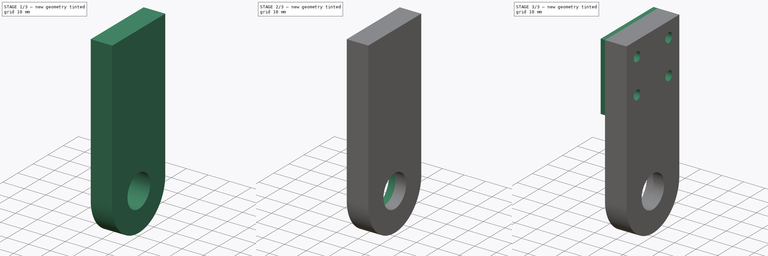
[diagram: build sequence overview — one tinted view per stage of 3, left to right]
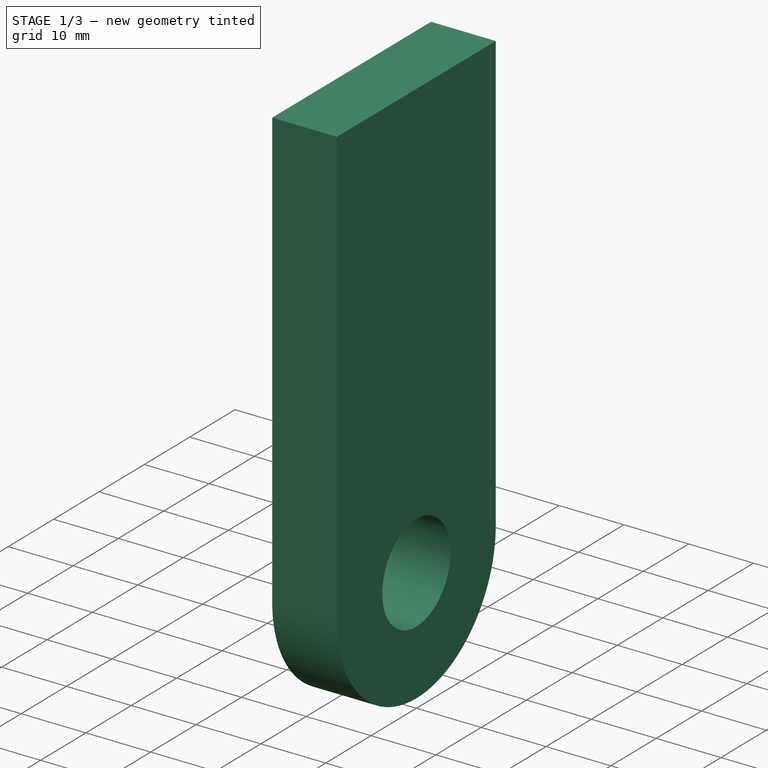
[diagram: stage 1 of 3 — iso view after this stage's code; geometry added in this stage tinted green]
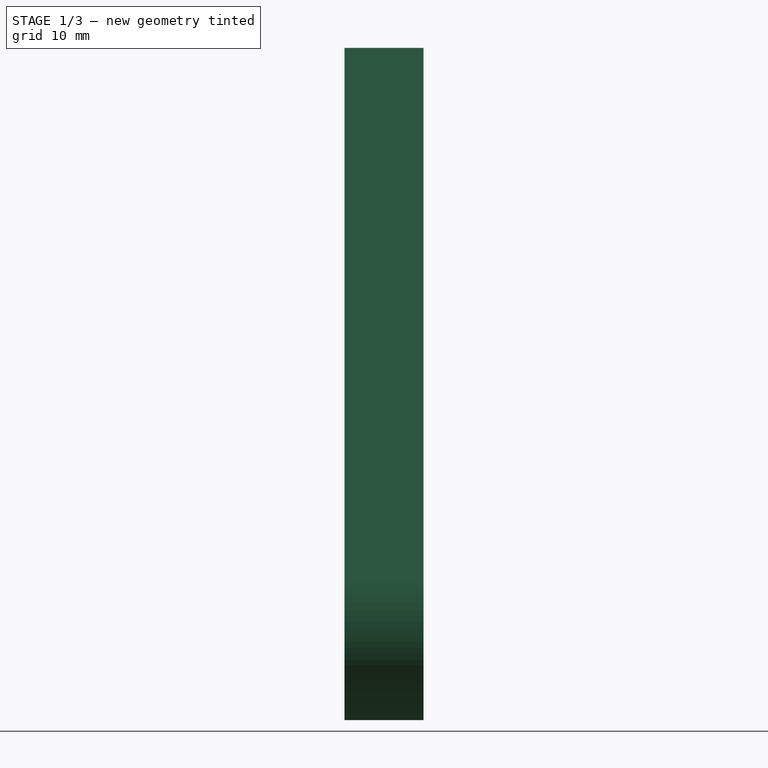
[diagram: stage 1 of 3 — front view after this stage's code; geometry added in this stage tinted green]
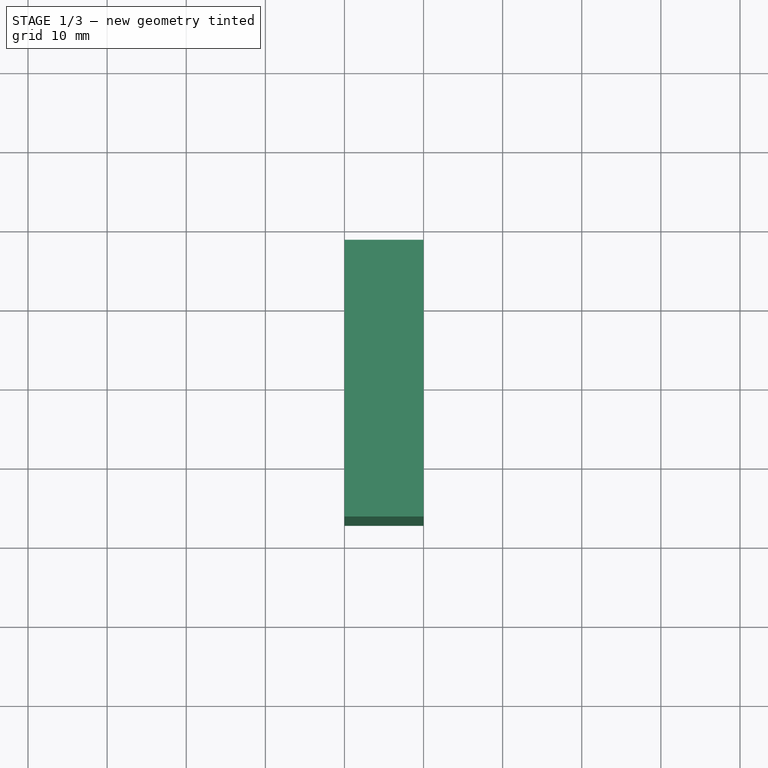
[diagram: stage 1 of 3 — top view after this stage's code; geometry added in this stage tinted green]
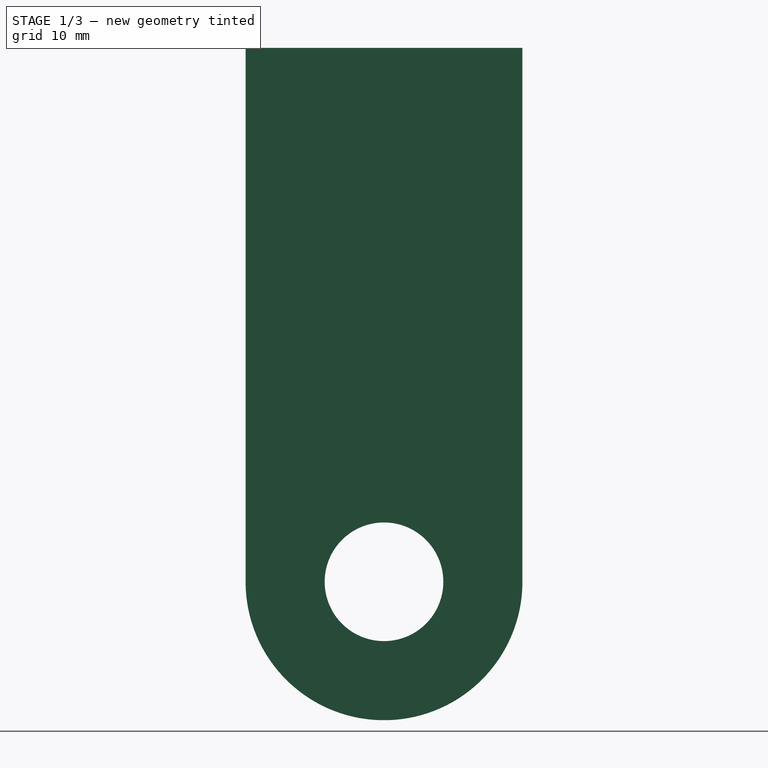
[diagram: stage 1 of 3 — right view after this stage's code; geometry added in this stage tinted green]
FCSTD DOCUMENT  (FreeCAD 0.18.4R)
Label: part3
License: All rights reserved
LicenseURL: http://en.wikipedia.org/wiki/All_rights_reserved
objects: Sketcher::SketchObject×5, PartDesign::Hole×3, PartDesign::Pad×2, PartDesign::Body×1, App::Part×1
note: 16 computed .brp shape members not serialized (recipe doc carries the construction recipe); baked Part::Feature solids carry a one-line shape summary decoded from their .brp

FEATURE [Sketcher::SketchObject] Sketch
  MapMode = 5
  Placement = pos=(0,0,0) rot=(0.57735,0.57735,0.57735;2.0944rad)
  Support = -> [YZ_Plane001]
  sketch-geometry (4):
    g0: ArcOfCircle CenterX=0 CenterY=0 CenterZ=0 NormalX=0 NormalY=0 NormalZ=1 AngleXU=0 Radius=17.5 StartAngle=3.14159 EndAngle=6.28319
    g1: LineSegment StartX=-17.5 StartY=-1.02156e-07 StartZ=0 EndX=-17.5 EndY=67.5 EndZ=0
    g2: LineSegment StartX=-17.5 StartY=67.5 StartZ=0 EndX=17.5 EndY=67.5 EndZ=0
    g3: LineSegment StartX=17.5 StartY=3.602e-05 StartZ=0 EndX=17.5 EndY=67.5 EndZ=0
  constraints (11):
    c: Coincident(g1,g0)
    c: Vertical(g1)
    c: Coincident(g0,g-1)
    c: DistanceY(g0,g1) = 67.5
    c: Radius(g0) = 17.5
    c: Coincident(g2,g1)
    c: Coincident(g3,g0)
    c: Coincident(g2,g3)
    c: Symmetric(g1,g2,g-2)
    c: Tangent(g0,g1)
    c: Tangent(g3,g0)
FEATURE [PartDesign::Pad] Pad
  Length = 10
  Length2 = 100
  Placement = pos=(0,0,0) rot=(0.57735,0.57735,0.57735;2.0944rad)
  Profile = -> Sketch
  Reversed = true
  Type = 0
FEATURE [Sketcher::SketchObject] Sketch001
  MapMode = 5
  Placement = pos=(-6.4e-15,0,0) rot=(0.57735,0.57735,0.57735;2.0944rad)
  Support = -> [Pad]
  sketch-geometry (1):
    g0: Circle CenterX=0 CenterY=0 CenterZ=0 NormalX=0 NormalY=0 NormalZ=1 AngleXU=0 Radius=7.36723
  constraints (1):
    c: Coincident(g0,g-1)
FEATURE [PartDesign::Hole] Hole
  BaseFeature = -> Pad
  Depth = 39
  DepthType = 1
  Diameter = 15
  DrillPoint = 0
  DrillPointAngle = 118
  HoleCutCountersinkAngle = 90
  HoleCutDepth = 0
  HoleCutDiameter = 0
  HoleCutType = 0
  ModelActualThread = false
  Placement = pos=(0,0,0) rot=(0.57735,0.57735,0.57735;2.0944rad)
  Profile = -> Sketch001
  Tapered = false
  TaperedAngle = 90
  ThreadAngle = 0
  ThreadClass = 0
  ThreadCutOffInner = 0
  ThreadCutOffOuter = 0
  ThreadDirection = 0
  ThreadFit = 0
  ThreadPitch = 0
  ThreadSize = 0
  ThreadType = 0
  Threaded = false
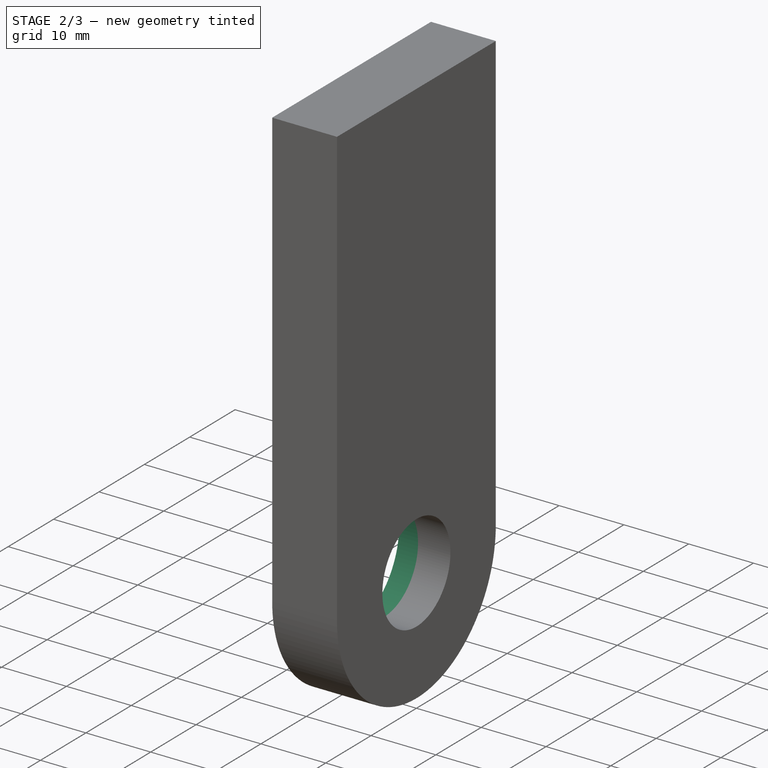
[diagram: stage 2 of 3 — iso view after this stage's code; geometry added in this stage tinted green]
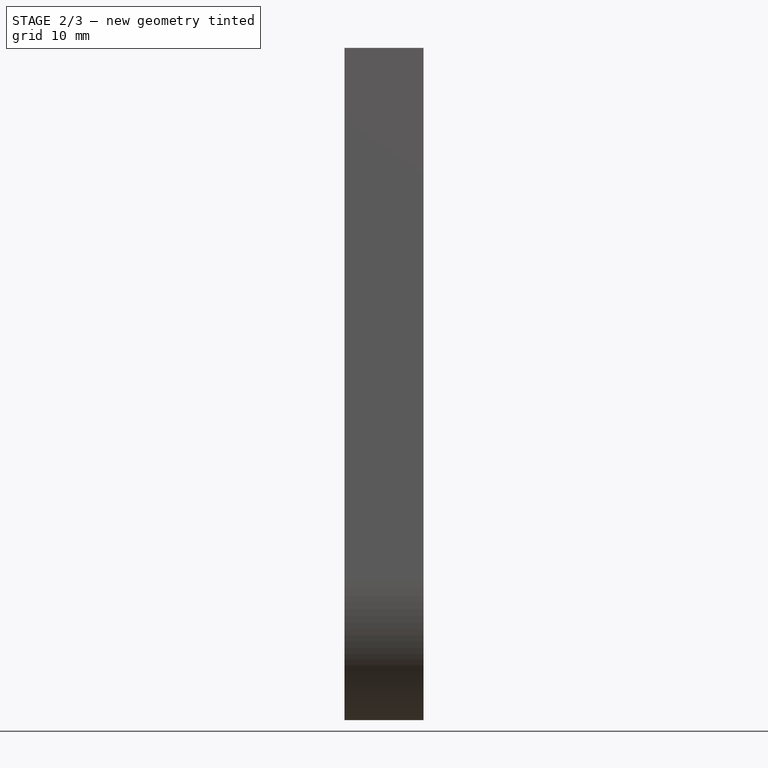
[diagram: stage 2 of 3 — front view after this stage's code; geometry added in this stage tinted green]
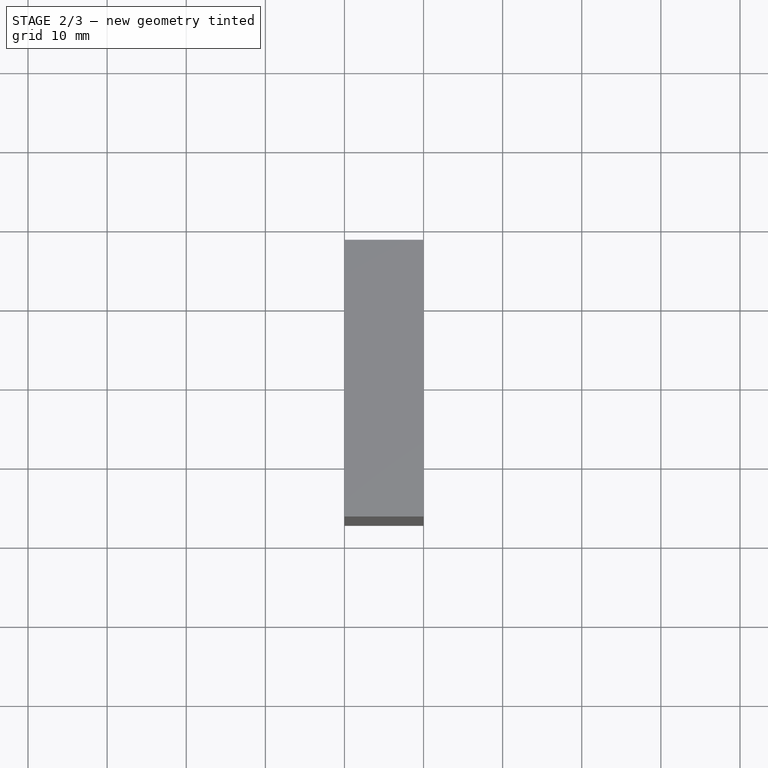
[diagram: stage 2 of 3 — top view after this stage's code; geometry added in this stage tinted green]
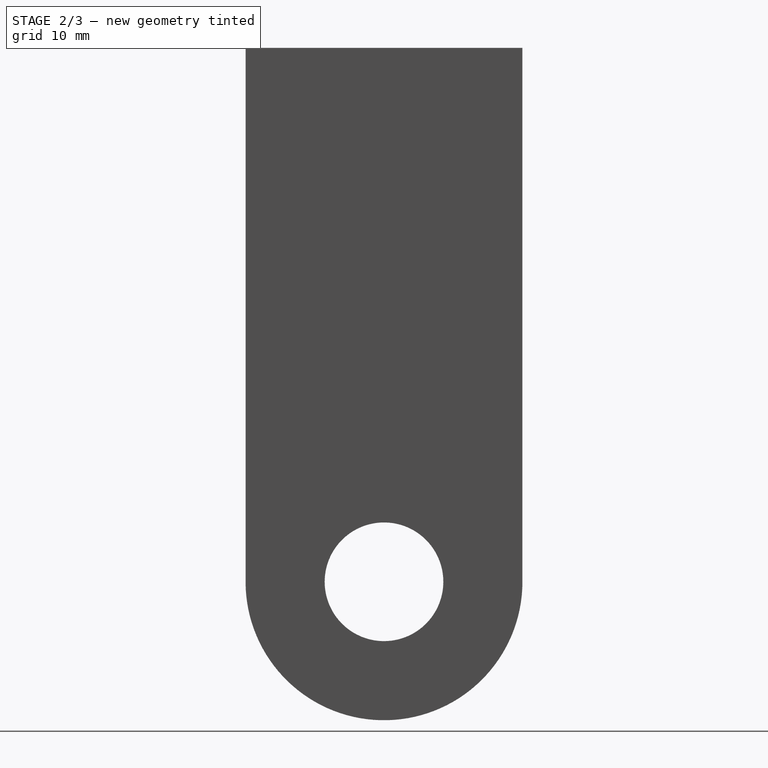
[diagram: stage 2 of 3 — right view after this stage's code; geometry added in this stage tinted green]
FEATURE [Sketcher::SketchObject] Sketch003
  MapMode = 5
  Placement = pos=(-10,8.9e-15,-5.6e-15) rot=(-0.57735,-0.57735,0.57735;2.0944rad)
  sketch-geometry (1):
    g0: Circle CenterX=0 CenterY=0 CenterZ=0 NormalX=0 NormalY=0 NormalZ=1 AngleXU=0 Radius=5.8956
  constraints (1):
    c: Coincident(g0,g-1)
FEATURE [PartDesign::Hole] Hole002
  BaseFeature = -> Hole
  Depth = 5
  DepthType = 0
  Diameter = 21
  DrillPoint = 0
  DrillPointAngle = 118
  HoleCutCountersinkAngle = 90
  HoleCutDepth = 0
  HoleCutDiameter = 0
  HoleCutType = 0
  ModelActualThread = false
  Placement = pos=(0,0,0) rot=(0.57735,0.57735,0.57735;2.0944rad)
  Profile = -> Sketch003
  Tapered = false
  TaperedAngle = 90
  ThreadAngle = 0
  ThreadClass = 0
  ThreadCutOffInner = 0
  ThreadCutOffOuter = 0
  ThreadDirection = 0
  ThreadFit = 0
  ThreadPitch = 0
  ThreadSize = 0
  ThreadType = 0
  Threaded = false
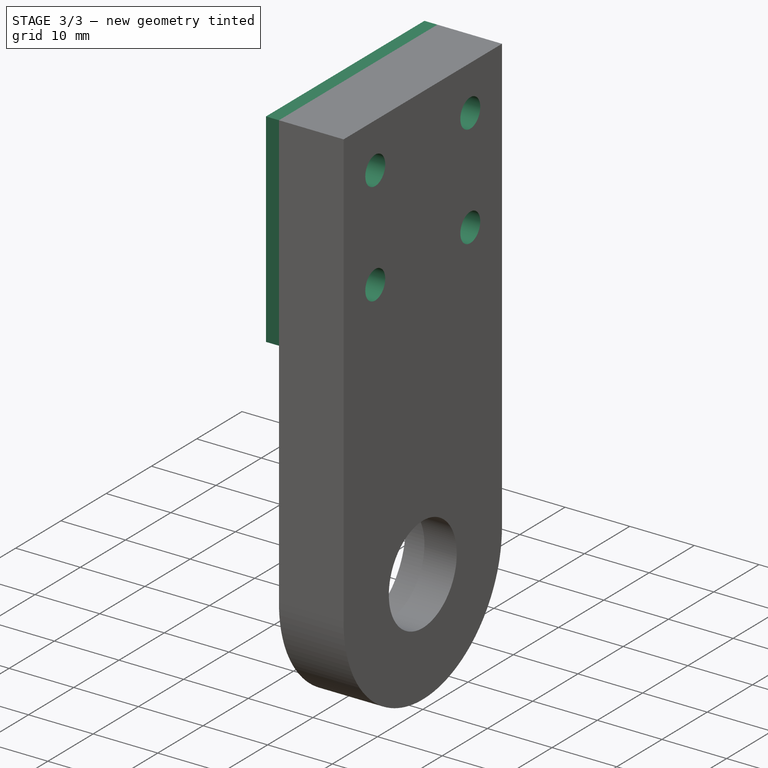
[diagram: stage 3 of 3 — iso view after this stage's code; geometry added in this stage tinted green]
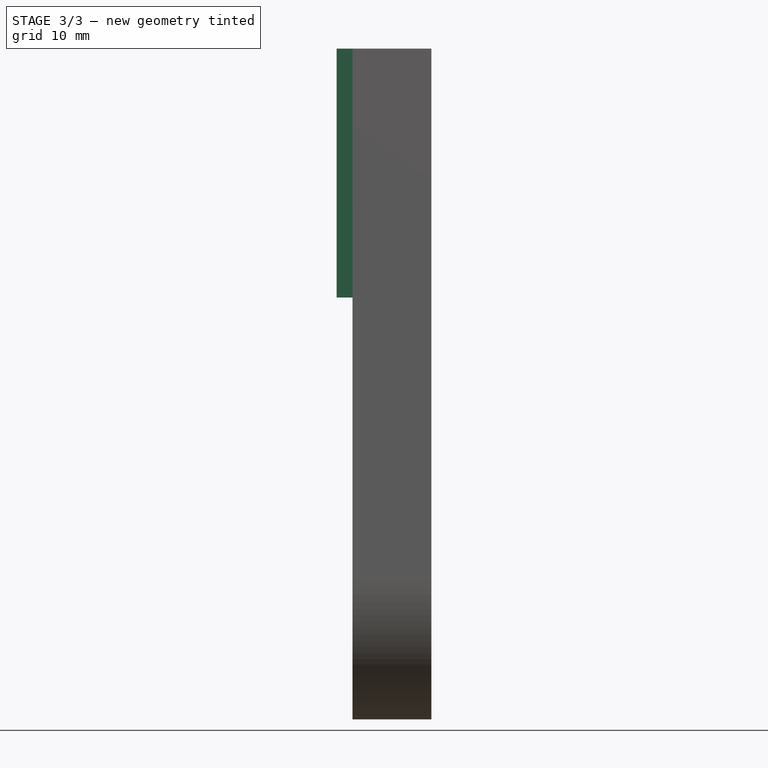
[diagram: stage 3 of 3 — front view after this stage's code; geometry added in this stage tinted green]
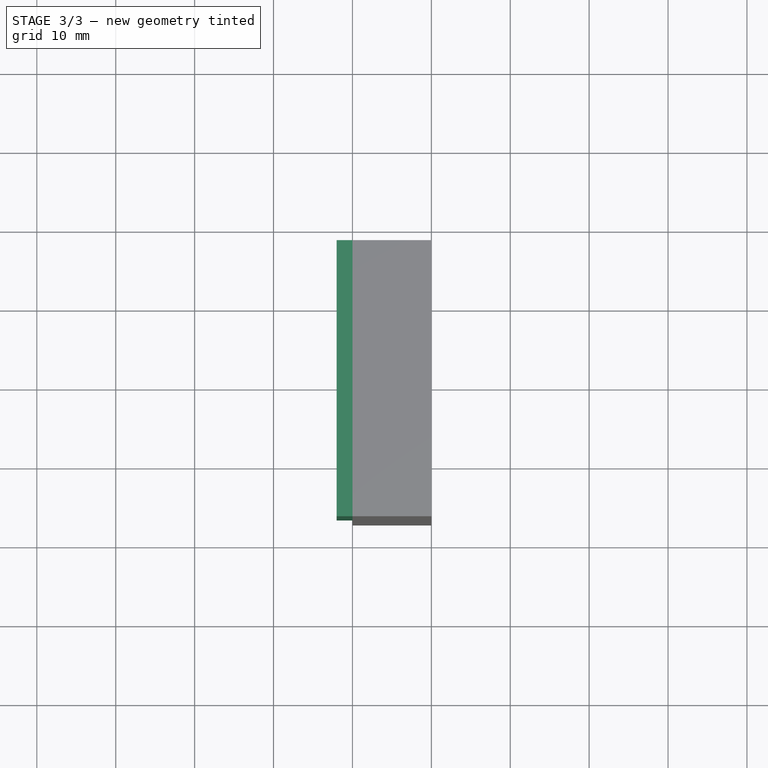
[diagram: stage 3 of 3 — top view after this stage's code; geometry added in this stage tinted green]
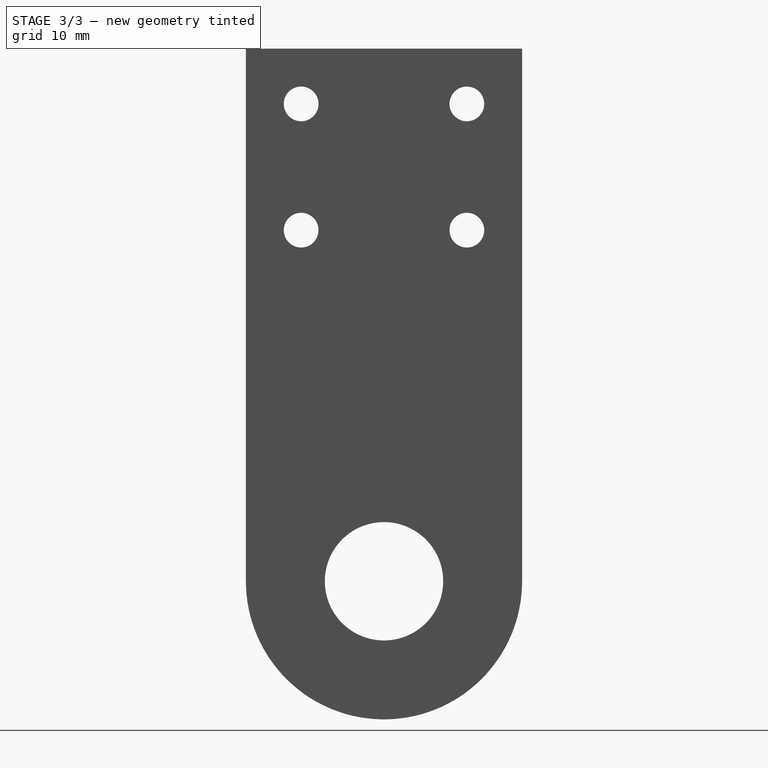
[diagram: stage 3 of 3 — right view after this stage's code; geometry added in this stage tinted green]
FEATURE [Sketcher::SketchObject] Sketch004
  MapMode = 5
  Placement = pos=(-10,4.4e-15,-3.3e-15) rot=(0.57735,0.57735,-0.57735;4.18879rad)
  Support = -> [Pad]
  sketch-geometry (6):
    g0: LineSegment StartX=-17.5 StartY=-35.9687 StartZ=0 EndX=-17.5 EndY=-67.5 EndZ=0
    g1: LineSegment StartX=-17.5 StartY=-67.5 StartZ=0 EndX=17.5 EndY=-67.5 EndZ=0
    g2: LineSegment StartX=17.5 StartY=-67.5 StartZ=0 EndX=17.5 EndY=-35.9687 EndZ=0
    g3: LineSegment StartX=-13.9194 StartY=-37.5 StartZ=0 EndX=13.9194 EndY=-37.5 EndZ=0
    g4: ArcOfCircle CenterX=0 CenterY=0 CenterZ=0 NormalX=0 NormalY=0 NormalZ=1 AngleXU=0 Radius=40 StartAngle=4.25957 EndAngle=4.35697
    g5: ArcOfCircle CenterX=0 CenterY=0 CenterZ=0 NormalX=0 NormalY=0 NormalZ=1 AngleXU=0 Radius=40 StartAngle=5.06781 EndAngle=5.16521
  constraints (16):
    c: Coincident(g1,g0)
    c: Coincident(g2,g1)
    c: Symmetric(g3,g3,g-2)
    c: Symmetric(g0,g2,g-2)
    c: DistanceY(g3,g-1) = 37.5
    c: Vertical(g0)
    c: Symmetric(g0,g1,g-2)
    c: Coincident(g4,g3)
    c: Coincident(g4,g0)
    c: Coincident(g3,g5)
    c: Coincident(g5,g2)
    c: Coincident(g4,g-1)
    c: Coincident(g4,g5)
    c: Radius(g5) = 40
    c: DistanceY(g1,g3) = 30
    c: DistanceX(g1,g1) = 35
FEATURE [PartDesign::Pad] Pad001
  BaseFeature = -> Hole002
  Length = 2
  Length2 = 100
  Placement = pos=(0,0,0) rot=(0.57735,0.57735,0.57735;2.0944rad)
  Profile = -> Sketch004
  Type = 0
FEATURE [Sketcher::SketchObject] Sketch005
  MapMode = 5
  Placement = pos=(-12,8e-15,-6.4e-15) rot=(-0.57735,-0.57735,0.57735;2.0944rad)
  Support = -> [Pad001]
  sketch-geometry (4):
    g0: Circle CenterX=-10.5 CenterY=-44.5 CenterZ=0 NormalX=0 NormalY=0 NormalZ=1 AngleXU=0 Radius=3.34526
    g1: Circle CenterX=-10.5 CenterY=-60.5 CenterZ=0 NormalX=0 NormalY=0 NormalZ=1 AngleXU=0 Radius=3.74435
    g2: Circle CenterX=10.5 CenterY=-44.5 CenterZ=0 NormalX=0 NormalY=0 NormalZ=1 AngleXU=0 Radius=2.20883
    g3: Circle CenterX=10.5 CenterY=-60.5 CenterZ=0 NormalX=0 NormalY=0 NormalZ=1 AngleXU=0 Radius=2.99025
  constraints (6):
    c: Symmetric(g0,g2,g-2)
    c: Symmetric(g1,g3,g-2)
    c: DistanceX(g0,g2) = 21
    c: DistanceX(g1,g3) = 21
    c: DistanceY(g3,g2) = 16
    c: DistanceY(g3,g-1) = 60.5
FEATURE [PartDesign::Hole] Hole003
  BaseFeature = -> Pad001
  Depth = 25
  DepthType = 1
  Diameter = 4.4
  DrillPoint = 0
  DrillPointAngle = 118
  HoleCutCountersinkAngle = 90
  HoleCutDepth = 0
  HoleCutDiameter = 4
  HoleCutType = 0
  ModelActualThread = false
  Placement = pos=(0,0,0) rot=(0.57735,0.57735,0.57735;2.0944rad)
  Profile = -> Sketch005
  Tapered = false
  TaperedAngle = 90
  ThreadAngle = 0
  ThreadClass = 0
  ThreadCutOffInner = 0
  ThreadCutOffOuter = 0
  ThreadDirection = 0
  ThreadFit = 0
  ThreadPitch = 0
  ThreadSize = 5
  ThreadType = 1
  Threaded = false
FEATURE [PartDesign::Body] Body
  Group = -> [Sketch,Pad,Sketch001,Hole,Sketch003,Hole002,Sketch004,Pad001,Sketch005,Hole003]
  Origin = -> Origin001
  Tip = -> Hole003
FEATURE [App::Part] Part  label="part3"
  Group = -> [Body]
  Origin = -> Origin
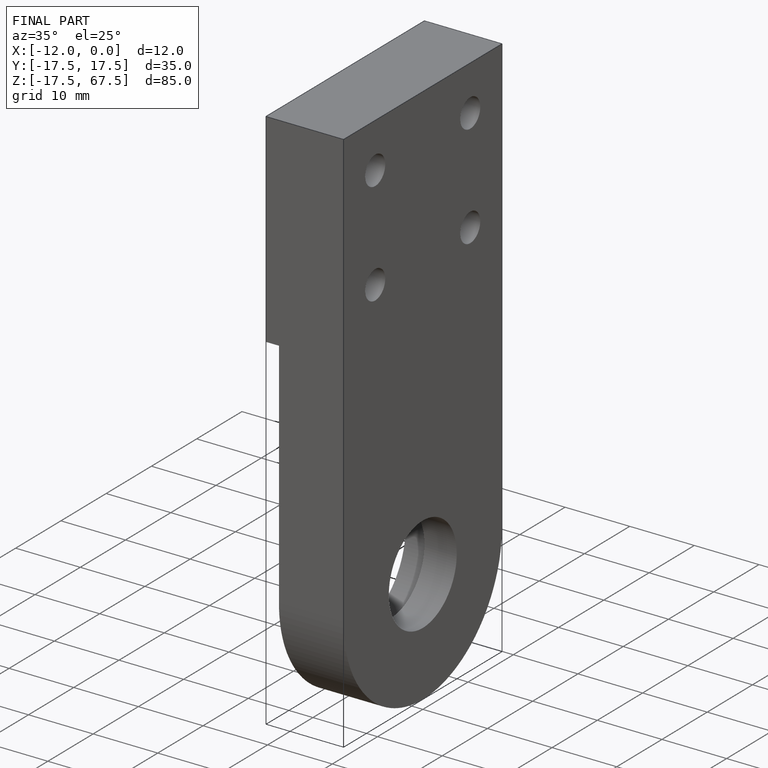
[diagram: finished part — iso view with bounding-box wireframe]
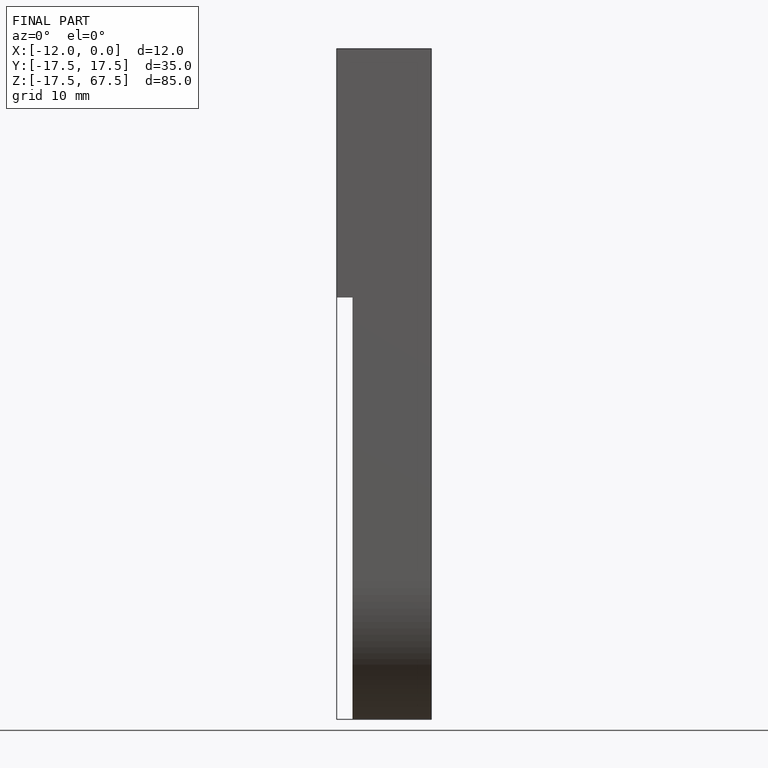
[diagram: finished part — front view with bounding-box wireframe]
